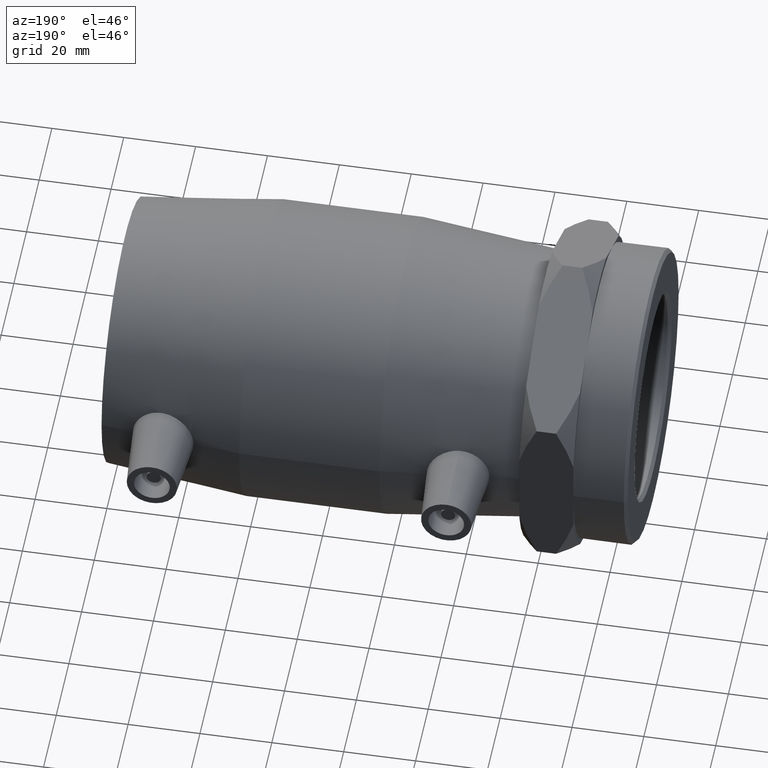
[diagram: clean part render]
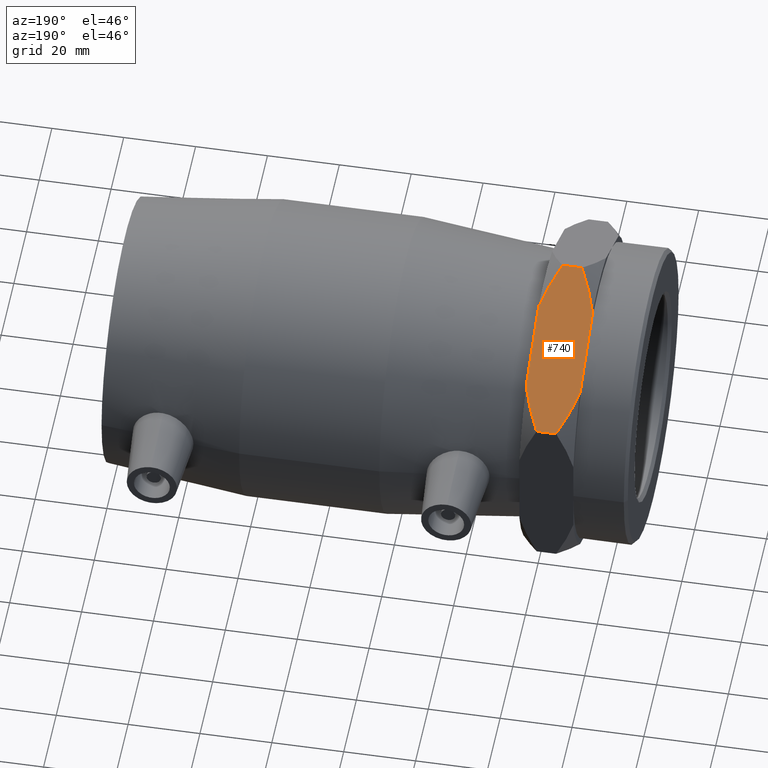
[diagram: same view with one face highlighted and labeled with its STEP entity id]
A machine part, auxiliary view. The second image highlights one B-rep face of the part: STEP entity #740.
In plain terms, the highlighted planar face has unit normal (0, 0.5, 0.866).
Its self-contained STEP definition (entity closure, byte-faithful):
#21=LINE('',#1269,#45);
#32=LINE('',#1284,#56);
#34=LINE('',#1288,#58);
#35=LINE('',#1289,#59);
#36=LINE('',#1290,#60);
#45=VECTOR('',#973,11.3526737567526);
#56=VECTOR('',#992,11.3526737567526);
#58=VECTOR('',#998,5.40000000000001);
#59=VECTOR('',#999,22.7053475135052);
#60=VECTOR('',#1000,5.39999999999999);
#66=(
BOUNDED_CURVE()
B_SPLINE_CURVE(2,(#1138,#1139,#1140),.UNSPECIFIED.,.F.,.F.)
B_SPLINE_CURVE_WITH_KNOTS((3,3),(0.,1.3237835896889),.UNSPECIFIED.)
CURVE()
GEOMETRIC_REPRESENTATION_ITEM()
RATIONAL_B_SPLINE_CURVE((1.,1.00952557580628,1.))
REPRESENTATION_ITEM('')
);
#68=(
BOUNDED_CURVE()
B_SPLINE_CURVE(2,(#1148,#1149,#1150),.UNSPECIFIED.,.F.,.F.)
B_SPLINE_CURVE_WITH_KNOTS((3,3),(0.,1.3237835896889),.UNSPECIFIED.)
CURVE()
GEOMETRIC_REPRESENTATION_ITEM()
RATIONAL_B_SPLINE_CURVE((1.,1.00952557580625,1.))
REPRESENTATION_ITEM('')
);
#80=(
BOUNDED_CURVE()
B_SPLINE_CURVE(2,(#1215,#1216,#1217),.UNSPECIFIED.,.F.,.F.)
B_SPLINE_CURVE_WITH_KNOTS((3,3),(0.,1.32378358968891),.UNSPECIFIED.)
CURVE()
GEOMETRIC_REPRESENTATION_ITEM()
RATIONAL_B_SPLINE_CURVE((1.,1.00952557580627,1.))
REPRESENTATION_ITEM('')
);
#82=(
BOUNDED_CURVE()
B_SPLINE_CURVE(2,(#1225,#1226,#1227),.UNSPECIFIED.,.F.,.F.)
B_SPLINE_CURVE_WITH_KNOTS((3,3),(0.,1.32378358968891),.UNSPECIFIED.)
CURVE()
GEOMETRIC_REPRESENTATION_ITEM()
RATIONAL_B_SPLINE_CURVE((1.,1.00952557580617,1.))
REPRESENTATION_ITEM('')
);
#109=PLANE('',#823);
#181=FACE_OUTER_BOUND('',#243,.T.);
#243=EDGE_LOOP('',(#601,#602,#603,#604,#605,#606,#607,#608,#609));
#350=VERTEX_POINT('',#1127);
#352=VERTEX_POINT('',#1132);
#353=VERTEX_POINT('',#1136);
#354=VERTEX_POINT('',#1142);
#356=VERTEX_POINT('',#1147);
#373=VERTEX_POINT('',#1209);
#374=VERTEX_POINT('',#1213);
#375=VERTEX_POINT('',#1219);
#377=VERTEX_POINT('',#1224);
#424=EDGE_CURVE('',#352,#353,#66,.T.);
#426=EDGE_CURVE('',#356,#354,#68,.T.);
#445=EDGE_CURVE('',#373,#374,#80,.T.);
#447=EDGE_CURVE('',#377,#375,#82,.T.);
#462=EDGE_CURVE('',#356,#350,#21,.T.);
#473=EDGE_CURVE('',#350,#353,#32,.T.);
#475=EDGE_CURVE('',#373,#354,#34,.T.);
#476=EDGE_CURVE('',#374,#377,#35,.T.);
#477=EDGE_CURVE('',#375,#352,#36,.T.);
#601=ORIENTED_EDGE('',*,*,#426,.T.);
#602=ORIENTED_EDGE('',*,*,#475,.F.);
#603=ORIENTED_EDGE('',*,*,#445,.T.);
#604=ORIENTED_EDGE('',*,*,#476,.T.);
#605=ORIENTED_EDGE('',*,*,#447,.T.);
#606=ORIENTED_EDGE('',*,*,#477,.T.);
#607=ORIENTED_EDGE('',*,*,#424,.T.);
#608=ORIENTED_EDGE('',*,*,#473,.F.);
#609=ORIENTED_EDGE('',*,*,#462,.F.);
#740=ADVANCED_FACE('',(#181),#109,.T.);
#823=AXIS2_PLACEMENT_3D('',#1287,#996,#997);
#973=DIRECTION('',(0.,0.86602540378444,-0.499999999999998));
#992=DIRECTION('',(0.,0.86602540378444,-0.499999999999998));
#996=DIRECTION('center_axis',(0.,0.499999999999998,0.86602540378444));
#997=DIRECTION('ref_axis',(0.,0.866025403784439,-0.499999999999999));
#998=DIRECTION('',(-1.,0.,0.));
#999=DIRECTION('',(0.,0.86602540378444,-0.499999999999998));
#1000=DIRECTION('',(-1.,0.,0.));
#1127=CARTESIAN_POINT('',(-73.5,20.4999999999999,35.507041555162));
#1132=CARTESIAN_POINT('',(-68.7,40.9999999999999,23.6713610367747));
#1136=CARTESIAN_POINT('',(-73.5,30.3317038742246,29.8307046767857));
#1138=CARTESIAN_POINT('Ctrl Pts',(-68.7,41.,23.6713610367747));
#1139=CARTESIAN_POINT('Ctrl Pts',(-71.9441303135502,35.3810014705566,26.9154913503249));
#1140=CARTESIAN_POINT('Ctrl Pts',(-73.5,30.3317038742246,29.8307046767857));
#1142=CARTESIAN_POINT('',(-68.7,0.,47.3427220735493));
#1147=CARTESIAN_POINT('',(-73.5,10.6682961257752,41.1833784335383));
#1148=CARTESIAN_POINT('Ctrl Pts',(-73.5,10.6682961257752,41.1833784335383));
#1149=CARTESIAN_POINT('Ctrl Pts',(-71.9441303135502,5.61899852944322,44.0985917599991));
#1150=CARTESIAN_POINT('Ctrl Pts',(-68.7,-8.65437683241924E-14,47.3427220735493));
#1209=CARTESIAN_POINT('',(-63.3,0.,47.3427220735493));
#1213=CARTESIAN_POINT('',(-58.5,10.6682961257752,41.1833784335383));
#1215=CARTESIAN_POINT('Ctrl Pts',(-63.3,-8.42047475586737E-14,47.3427220735493));
#1216=CARTESIAN_POINT('Ctrl Pts',(-60.0558696864498,5.61899852944319,44.0985917599991));
#1217=CARTESIAN_POINT('Ctrl Pts',(-58.5,10.6682961257753,41.1833784335383));
#1219=CARTESIAN_POINT('',(-63.3,41.,23.6713610367747));
#1224=CARTESIAN_POINT('',(-58.5,30.3317038742246,29.8307046767857));
#1225=CARTESIAN_POINT('Ctrl Pts',(-58.5,30.3317038742246,29.8307046767858));
#1226=CARTESIAN_POINT('Ctrl Pts',(-60.0558696864498,35.3810014705567,26.9154913503249));
#1227=CARTESIAN_POINT('Ctrl Pts',(-63.3,41.,23.6713610367747));
#1269=CARTESIAN_POINT('',(-73.5,-8.81015690508994E-14,47.3427220735493));
#1284=CARTESIAN_POINT('',(-73.5,-8.81015690508994E-14,47.3427220735493));
#1287=CARTESIAN_POINT('Origin',(-58.5,-8.81015690508994E-14,47.3427220735493));
#1288=CARTESIAN_POINT('',(-58.5,-8.81015690508994E-14,47.3427220735493));
#1289=CARTESIAN_POINT('',(-58.5,-8.81015690508994E-14,47.3427220735493));
#1290=CARTESIAN_POINT('',(-58.5,41.,23.6713610367747));